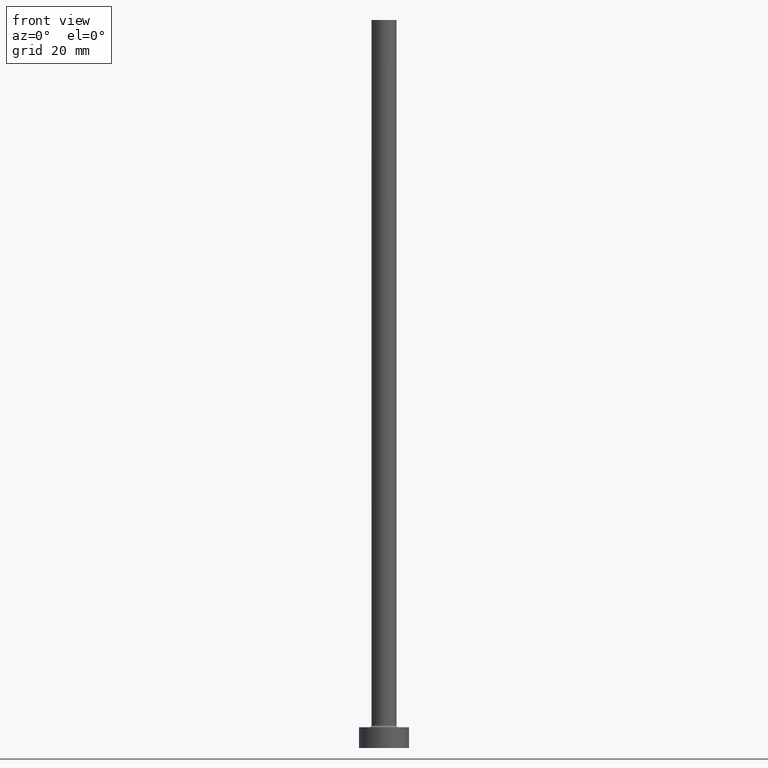
[diagram: clean part render]
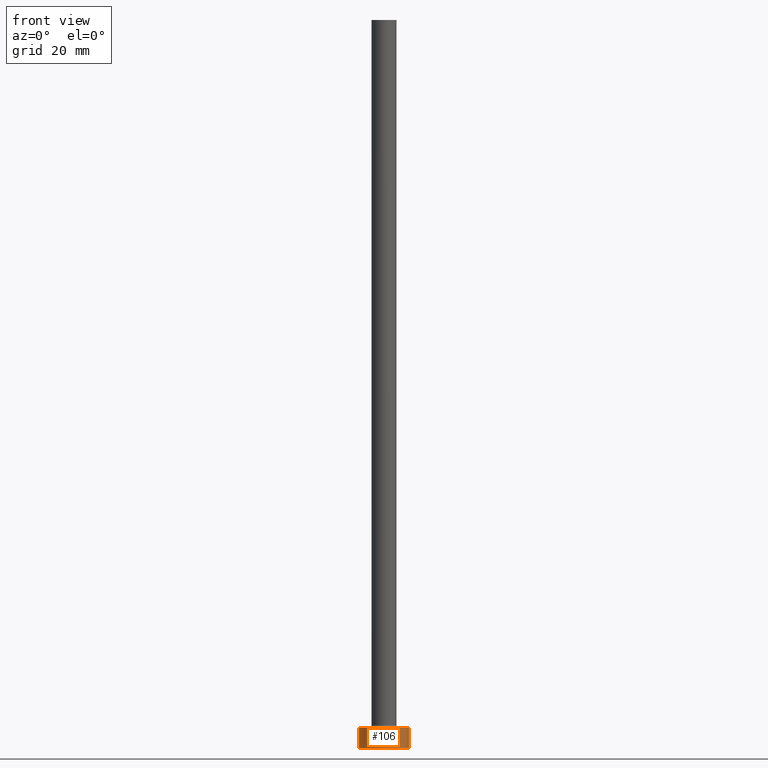
[diagram: same view with one face highlighted and labeled with its STEP entity id]
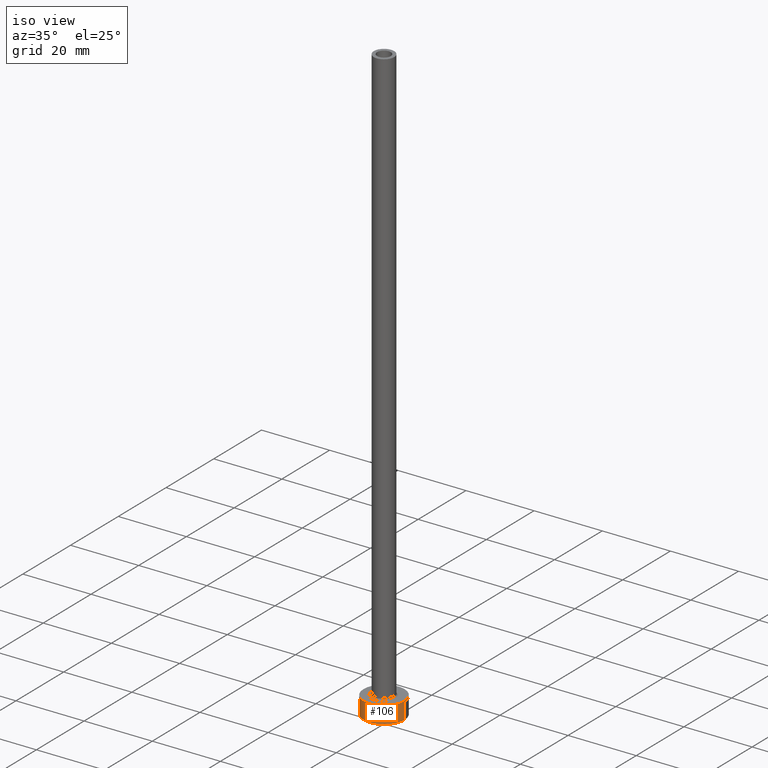
[diagram: same view with one face highlighted and labeled with its STEP entity id]
A machine part, front view. The second image highlights one B-rep face of the part: STEP entity #106.
A second angle (iso view) of the same face is appended — the face is thin or edge-on in the first view.
In plain terms, the highlighted cylindrical surface (edge-blend (fillet) strip) has radius 6 mm, axis along (-0, -0, -1).
Its self-contained STEP definition (entity closure, byte-faithful):
#1 = CARTESIAN_POINT ( 'NONE',  ( 6.000000000000000888, 7.347880794884120722E-16, 5.000000000000000000 ) ) ;
#32 = DIRECTION ( 'NONE',  ( 1.000000000000000000, 0.000000000000000000, 0.000000000000000000 ) ) ;
#36 = EDGE_CURVE ( 'NONE', #231, #403, #382, .T. ) ;
#67 = LINE ( 'NONE', #232, #78 ) ;
#73 = CARTESIAN_POINT ( 'NONE',  ( 6.000000000000000888, 7.347880794884120722E-16, 5.000000000000000000 ) ) ;
#78 = VECTOR ( 'NONE', #193, 1000.000000000000000 ) ;
#85 = VERTEX_POINT ( 'NONE', #218 ) ;
#88 = CARTESIAN_POINT ( 'NONE',  ( -6.000000000000000888, 0.000000000000000000, 5.000000000000000000 ) ) ;
#94 = ORIENTED_EDGE ( 'NONE', *, *, #412, .F. ) ;
#100 = CARTESIAN_POINT ( 'NONE',  ( 0.000000000000000000, 0.000000000000000000, 0.000000000000000000 ) ) ;
#106 = ADVANCED_FACE ( 'NONE', ( #179 ), #285, .T. ) ;
#111 = DIRECTION ( 'NONE',  ( -0.000000000000000000, -0.000000000000000000, -1.000000000000000000 ) ) ;
#159 = DIRECTION ( 'NONE',  ( 0.000000000000000000, 0.000000000000000000, 1.000000000000000000 ) ) ;
#166 = EDGE_LOOP ( 'NONE', ( #94, #220, #227, #258 ) ) ;
#167 = DIRECTION ( 'NONE',  ( 1.000000000000000000, 0.000000000000000000, 0.000000000000000000 ) ) ;
#179 = FACE_OUTER_BOUND ( 'NONE', #166, .T. ) ;
#180 = AXIS2_PLACEMENT_3D ( 'NONE', #236, #201, #32 ) ;
#193 = DIRECTION ( 'NONE',  ( -0.000000000000000000, -0.000000000000000000, -1.000000000000000000 ) ) ;
#201 = DIRECTION ( 'NONE',  ( 0.000000000000000000, 0.000000000000000000, 1.000000000000000000 ) ) ;
#205 = CARTESIAN_POINT ( 'NONE',  ( 6.000000000000000888, 7.347880794884120722E-16, 0.000000000000000000 ) ) ;
#218 = CARTESIAN_POINT ( 'NONE',  ( -6.000000000000000888, 0.000000000000000000, 0.000000000000000000 ) ) ;
#220 = ORIENTED_EDGE ( 'NONE', *, *, #36, .F. ) ;
#227 = ORIENTED_EDGE ( 'NONE', *, *, #347, .T. ) ;
#231 = VERTEX_POINT ( 'NONE', #88 ) ;
#232 = CARTESIAN_POINT ( 'NONE',  ( -6.000000000000000888, 0.000000000000000000, 5.000000000000000000 ) ) ;
#236 = CARTESIAN_POINT ( 'NONE',  ( 0.000000000000000000, 0.000000000000000000, 5.000000000000000000 ) ) ;
#239 = LINE ( 'NONE', #1, #276 ) ;
#256 = EDGE_CURVE ( 'NONE', #85, #408, #384, .T. ) ;
#258 = ORIENTED_EDGE ( 'NONE', *, *, #256, .T. ) ;
#276 = VECTOR ( 'NONE', #111, 1000.000000000000000 ) ;
#285 = CYLINDRICAL_SURFACE ( 'NONE', #450, 6.000000000000000888 ) ;
#288 = DIRECTION ( 'NONE',  ( -0.000000000000000000, -0.000000000000000000, -1.000000000000000000 ) ) ;
#309 = AXIS2_PLACEMENT_3D ( 'NONE', #100, #159, #167 ) ;
#320 = DIRECTION ( 'NONE',  ( -1.000000000000000000, 0.000000000000000000, 0.000000000000000000 ) ) ;
#347 = EDGE_CURVE ( 'NONE', #231, #85, #67, .T. ) ;
#382 = CIRCLE ( 'NONE', #180, 6.000000000000000888 ) ;
#384 = CIRCLE ( 'NONE', #309, 6.000000000000000888 ) ;
#394 = CARTESIAN_POINT ( 'NONE',  ( 0.000000000000000000, 0.000000000000000000, 5.000000000000000000 ) ) ;
#403 = VERTEX_POINT ( 'NONE', #73 ) ;
#408 = VERTEX_POINT ( 'NONE', #205 ) ;
#412 = EDGE_CURVE ( 'NONE', #403, #408, #239, .T. ) ;
#450 = AXIS2_PLACEMENT_3D ( 'NONE', #394, #288, #320 ) ;